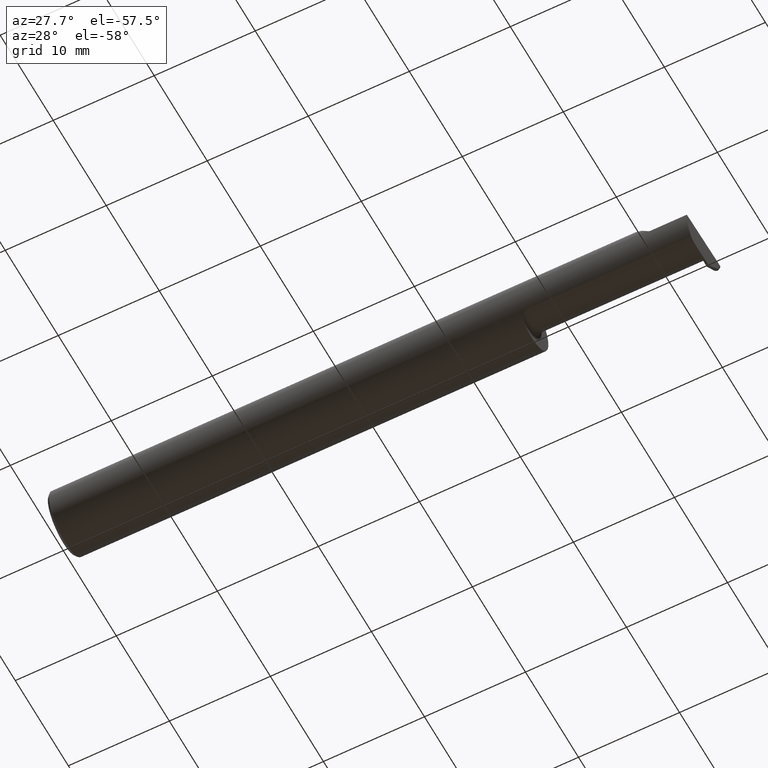
[diagram: clean part render]
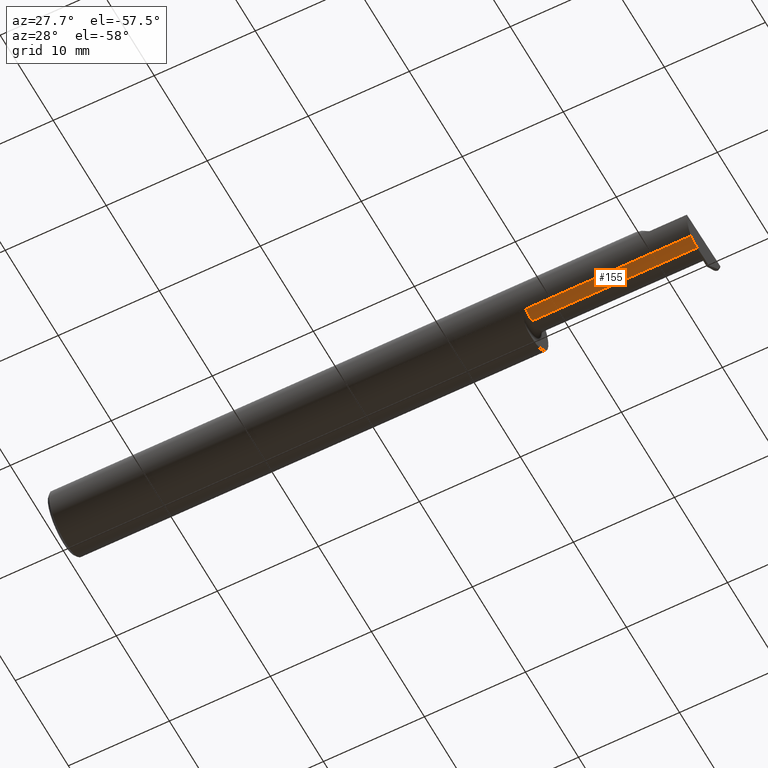
[diagram: same view with one face highlighted and labeled with its STEP entity id]
A machine part, auxiliary view. The second image highlights one B-rep face of the part: STEP entity #155.
In plain terms, the highlighted cylindrical surface (edge-blend (fillet) strip) has radius 2.4892 mm, axis along (-1, -0, -0).
Its self-contained STEP definition (entity closure, byte-faithful):
#31 = EDGE_CURVE ( 'NONE', #536, #445, #450, .T. ) ;
#34 = VERTEX_POINT ( 'NONE', #697 ) ;
#57 = VERTEX_POINT ( 'NONE', #72 ) ;
#72 = CARTESIAN_POINT ( 'NONE',  ( 1.849999999999999867, -0.09042045454545424854, -0.08630840862739527775 ) ) ;
#113 = CARTESIAN_POINT ( 'NONE',  ( 1.849999999999999867, -0.04400000000000009459, 0.000000000000000000 ) ) ;
#142 = FACE_OUTER_BOUND ( 'NONE', #207, .T. ) ;
#150 = LINE ( 'NONE', #621, #381 ) ;
#155 = ADVANCED_FACE ( 'NONE', ( #142 ), #396, .T. ) ;
#161 =( BOUNDED_CURVE ( )  B_SPLINE_CURVE ( 3, ( #553, #169, #365, #803 ),
 .UNSPECIFIED., .F., .F. ) 
 B_SPLINE_CURVE_WITH_KNOTS ( ( 4, 4 ),
 ( 6.253187659403606879, 6.746650124384895086 ),
 .UNSPECIFIED. ) 
 CURVE ( )  GEOMETRIC_REPRESENTATION_ITEM ( )  RATIONAL_B_SPLINE_CURVE ( ( 1.000000000000000000, 0.9798106333074688701, 0.9798106333074688701, 1.000000000000000000 ) ) 
 REPRESENTATION_ITEM ( '' )  );
#169 = CARTESIAN_POINT ( 'NONE',  ( 2.493412911089820660, -0.07607783494366264498, -0.09402249966297464290 ) ) ;
#171 = VECTOR ( 'NONE', #439, 39.37007874015748143 ) ;
#177 = ORIENTED_EDGE ( 'NONE', *, *, #31, .F. ) ;
#190 = EDGE_CURVE ( 'NONE', #34, #304, #161, .T. ) ;
#195 = CARTESIAN_POINT ( 'NONE',  ( 1.824999999999999956, -0.04400000000000008765, -0.09800000000000008704 ) ) ;
#203 = EDGE_CURVE ( 'NONE', #445, #57, #773, .T. ) ;
#204 = CARTESIAN_POINT ( 'NONE',  ( 2.166241705000000017, -0.09042045454545424854, -0.08630840862739529162 ) ) ;
#207 = EDGE_LOOP ( 'NONE', ( #177, #768, #398, #688, #517 ) ) ;
#219 = CARTESIAN_POINT ( 'NONE',  ( 2.487115857322145018, -0.04400000000000009459, -0.09800000000000008704 ) ) ;
#296 = DIRECTION ( 'NONE',  ( 0.000000000000000000, 0.000000000000000000, 1.000000000000000000 ) ) ;
#304 = VERTEX_POINT ( 'NONE', #762 ) ;
#305 = DIRECTION ( 'NONE',  ( -1.000000000000000000, -0.000000000000000000, -0.000000000000000000 ) ) ;
#310 = EDGE_CURVE ( 'NONE', #34, #57, #636, .T. ) ;
#336 = DIRECTION ( 'NONE',  ( -1.000000000000000000, -0.000000000000000000, -0.000000000000000000 ) ) ;
#354 = EDGE_CURVE ( 'NONE', #304, #536, #150, .T. ) ;
#365 = CARTESIAN_POINT ( 'NONE',  ( 2.493549648562251253, -0.06028551311893196735, -0.09800000000000008704 ) ) ;
#381 = VECTOR ( 'NONE', #515, 39.37007874015748143 ) ;
#396 = CYLINDRICAL_SURFACE ( 'NONE', #463, 0.09800000000000008704 ) ;
#398 = ORIENTED_EDGE ( 'NONE', *, *, #190, .F. ) ;
#419 = AXIS2_PLACEMENT_3D ( 'NONE', #113, #305, #296 ) ;
#439 = DIRECTION ( 'NONE',  ( -1.000000000000000000, -0.000000000000000000, -0.000000000000000000 ) ) ;
#445 = VERTEX_POINT ( 'NONE', #718 ) ;
#450 = LINE ( 'NONE', #195, #626 ) ;
#463 = AXIS2_PLACEMENT_3D ( 'NONE', #645, #336, #583 ) ;
#515 = DIRECTION ( 'NONE',  ( -1.000000000000000000, -0.000000000000000000, -0.000000000000000000 ) ) ;
#517 = ORIENTED_EDGE ( 'NONE', *, *, #203, .F. ) ;
#536 = VERTEX_POINT ( 'NONE', #219 ) ;
#553 = CARTESIAN_POINT ( 'NONE',  ( 2.493431982762754462, -0.09042045454545424854, -0.08630840862739529162 ) ) ;
#559 = DIRECTION ( 'NONE',  ( -1.000000000000000000, -0.000000000000000000, -0.000000000000000000 ) ) ;
#583 = DIRECTION ( 'NONE',  ( 0.000000000000000000, 0.000000000000000000, 1.000000000000000000 ) ) ;
#621 = CARTESIAN_POINT ( 'NONE',  ( 2.672413070268786939, -0.04400000000000009459, -0.09800000000000008704 ) ) ;
#626 = VECTOR ( 'NONE', #559, 39.37007874015748143 ) ;
#636 = LINE ( 'NONE', #204, #171 ) ;
#645 = CARTESIAN_POINT ( 'NONE',  ( 1.824999999999999956, -0.04400000000000009459, 0.000000000000000000 ) ) ;
#688 = ORIENTED_EDGE ( 'NONE', *, *, #310, .T. ) ;
#697 = CARTESIAN_POINT ( 'NONE',  ( 2.493431982762754462, -0.09042045454545424854, -0.08630840862739529162 ) ) ;
#718 = CARTESIAN_POINT ( 'NONE',  ( 1.849999999999999867, -0.04400000000000008765, -0.09800000000000008704 ) ) ;
#762 = CARTESIAN_POINT ( 'NONE',  ( 2.493833913251130241, -0.04400000000000009459, -0.09800000000000008704 ) ) ;
#768 = ORIENTED_EDGE ( 'NONE', *, *, #354, .F. ) ;
#773 = CIRCLE ( 'NONE', #419, 0.09800000000000008704 ) ;
#803 = CARTESIAN_POINT ( 'NONE',  ( 2.493833913251130241, -0.04400000000000009459, -0.09800000000000008704 ) ) ;